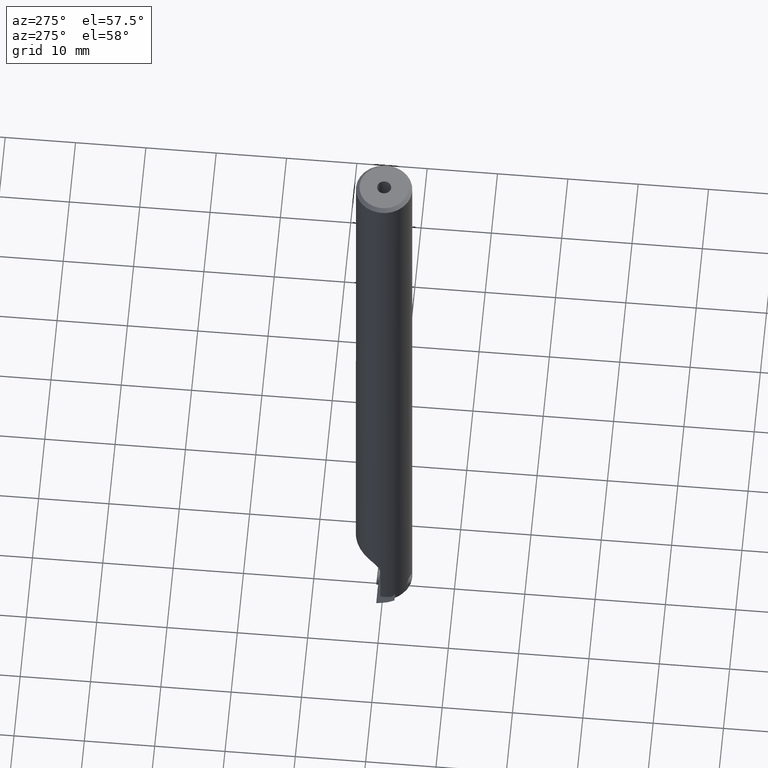
[diagram: clean part render]
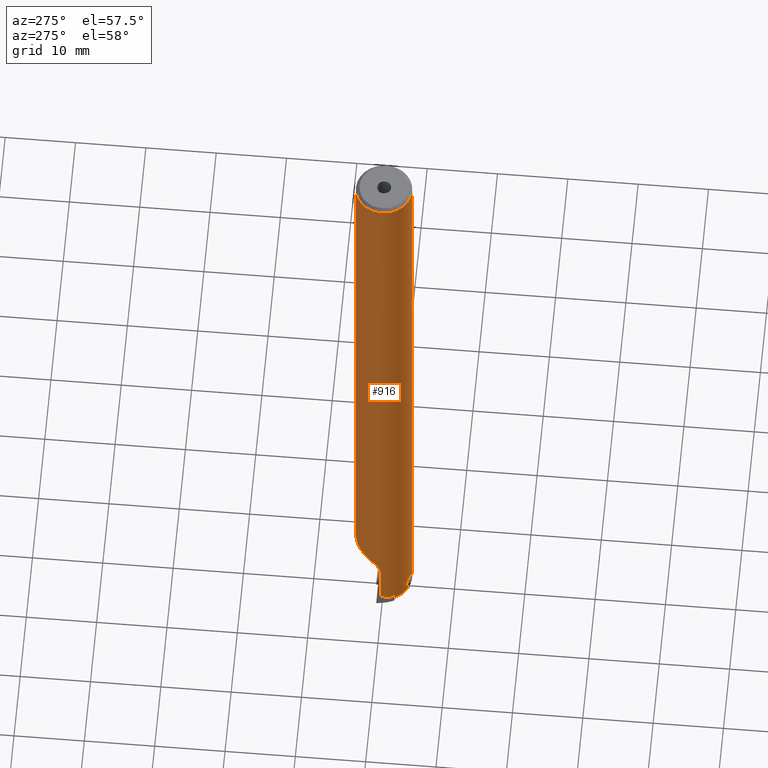
[diagram: same view with one face highlighted and labeled with its STEP entity id]
A machine part, auxiliary view. The second image highlights one B-rep face of the part: STEP entity #916.
In plain terms, the highlighted cylindrical surface (edge-blend (fillet) strip) has radius 4 mm, axis along (-0, -0, 1).
Its self-contained STEP definition (entity closure, byte-faithful):
#462=VERTEX_POINT('NONE',#1305);
#484=VERTEX_POINT('NONE',#1330);
#672=EDGE_CURVE('NONE',#942,#728,#1543,.T.);
#704=EDGE_CURVE('NONE',#1234,#942,#1578,.T.);
#728=VERTEX_POINT('NONE',#1606);
#748=EDGE_CURVE('NONE',#1040,#1214,#1629,.T.);
#830=EDGE_CURVE('NONE',#1234,#1216,#1724,.T.);
#852=EDGE_CURVE('NONE',#1214,#484,#1748,.T.);
#894=EDGE_CURVE('NONE',#1196,#462,#1794,.F.);
#902=EDGE_CURVE('NONE',#728,#1064,#1803,.T.);
#916=ADVANCED_FACE('NONE',(#1817,#1818),#1819,.T.);
#922=EDGE_CURVE('NONE',#1216,#1172,#1825,.T.);
#942=VERTEX_POINT('NONE',#1846);
#992=VERTEX_POINT('NONE',#1900);
#1008=EDGE_CURVE('NONE',#1064,#484,#1917,.T.);
#1040=VERTEX_POINT('NONE',#1951);
#1064=VERTEX_POINT('NONE',#1977);
#1082=EDGE_CURVE('NONE',#992,#1040,#1995,.T.);
#1096=EDGE_CURVE('NONE',#1172,#992,#2010,.T.);
#1172=VERTEX_POINT('NONE',#2092);
#1188=EDGE_CURVE('NONE',#462,#1196,#2111,.T.);
#1196=VERTEX_POINT('NONE',#2121);
#1214=VERTEX_POINT('NONE',#2142);
#1216=VERTEX_POINT('NONE',#2144);
#1234=VERTEX_POINT('NONE',#2163);
#1305=CARTESIAN_POINT('',(-0.340133994370878,-3.98551237181285,-13.923324010605));
#1330=CARTESIAN_POINT('',(4.89858719658941E-016,4.0,86.5));
#1543=B_SPLINE_CURVE_WITH_KNOTS('',3,(#3123,#3124,#3125,#3126,#3127,#3128,#3129,#3130,#3131,#3132,#3133,#3134,#3135,#3136,#3137,#3138,#3139,#3140,#3141,#3142,#3143,#3144,#3145,#3146),.UNSPECIFIED.,.F.,.F.,(4,2,2,2,2,2,2,2,2,2,2,4),(0.623065962701337,1.24613192540267,1.86919788810401,2.49226385080535,3.23942589249635,3.98658793418735,4.73374997587835,5.48091201756935,5.83565754083408,6.19040306409881,6.89989411062827,7.67961945005332),.UNSPECIFIED.);
#1578=LINE('',#3206,#3207);
#1606=CARTESIAN_POINT('',(-3.62077339804633,1.7,-5.8019237886467));
#1629=LINE('',#3268,#3269);
#1724=ELLIPSE('',#3394,4.50594786708596,4.0);
#1748=CIRCLE('',#3428,4.0);
#1794=B_SPLINE_CURVE_WITH_KNOTS('',3,(#3490,#3491,#3492,#3493,#3494,#3495,#3496,#3497,#3498,#3499,#3500,#3501,#3502,#3503,#3504,#3505,#3506,#3507,#3508,#3509,#3510),.UNSPECIFIED.,.F.,.F.,(4,2,2,2,2,2,2,2,3,4),(2.46613264537326,2.72000684166074,3.01468329092231,3.3177284971455,3.62077370336868,3.92793509737604,4.2350964913834,4.53351536203885,4.83193423269431,4.87285303651468),.UNSPECIFIED.);
#1803=ELLIPSE('',#3532,4.618802153517,4.0);
#1817=FACE_OUTER_BOUND('',#3555,.T.);
#1818=FACE_BOUND('',#3556,.T.);
#1819=CYLINDRICAL_SURFACE('',#3557,4.0);
#1825=ELLIPSE('',#3565,8.84778686264525,4.0);
#1846=CARTESIAN_POINT('',(-3.99499687108764,0.2,-8.40000000000002));
#1900=CARTESIAN_POINT('',(-3.56054767509206,-1.82277268286436,-15.3031423692364));
#1917=LINE('',#3696,#3697);
#1951=CARTESIAN_POINT('',(0.0,-4.0,-15.1305370023047));
#1977=CARTESIAN_POINT('',(4.89858719658941E-016,4.0,-4.47401816951056));
#1995=B_SPLINE_CURVE_WITH_KNOTS('',3,(#3811,#3812,#3813,#3814,#3815,#3816,#3817,#3818,#3819,#3820,#3821,#3822,#3823,#3824,#3825,#3826),.UNSPECIFIED.,.F.,.F.,(4,3,3,3,3,4),(0.0,0.188412118526017,0.205693687149149,0.324787536858853,0.402670096026246,0.411387374298297),.UNSPECIFIED.);
#2010=ELLIPSE('',#3848,45.9578366004953,4.0);
#2092=CARTESIAN_POINT('',(-3.52001675680302,-1.89986368769604,-14.4186547680544));
#2111=B_SPLINE_CURVE_WITH_KNOTS('',3,(#4054,#4055,#4056,#4057,#4058,#4059,#4060,#4061,#4062,#4063,#4064,#4065,#4066,#4067,#4068,#4069,#4070,#4071,#4072,#4073),.UNSPECIFIED.,.F.,.F.,(4,2,2,2,2,2,2,2,2,4),(2.36579783438626,2.40660336280622,2.70091617536794,2.99522898792967,3.29440617751613,3.59358336710259,3.91188587946234,4.23018839182208,4.53106107351374,4.79101495138584),.UNSPECIFIED.);
#2121=CARTESIAN_POINT('',(-1.90012813483741,-3.51987401354073,-13.964285854812));
#2142=CARTESIAN_POINT('',(0.0,-4.0,86.5));
#2144=CARTESIAN_POINT('',(-3.77484015987331,-1.32309552467222,-14.8652238306208));
#2163=CARTESIAN_POINT('',(-3.99499687108764,0.199999999999998,-14.6230867115586));
#3123=CARTESIAN_POINT('',(-3.91809947218333,0.805292820082678,-10.2070355620332));
#3124=CARTESIAN_POINT('',(-3.94455207976015,0.676589388383246,-10.0364760911105));
#3125=CARTESIAN_POINT('',(-3.96108633311694,0.56405593062235,-9.84887138798155));
#3126=CARTESIAN_POINT('',(-3.98272604400572,0.382434913017021,-9.45297550611414));
#3127=CARTESIAN_POINT('',(-3.98798540686881,0.313149063253035,-9.24429186444008));
#3128=CARTESIAN_POINT('',(-3.99410071693948,0.221922064829203,-8.82165020664595));
#3129=CARTESIAN_POINT('',(-3.99499687108764,0.2,-8.6076886542338));
#3130=CARTESIAN_POINT('',(-3.99499687108764,0.2,-8.15094598610302));
#3131=CARTESIAN_POINT('',(-3.99380982541122,0.23150048120355,-7.89672137838658));
#3132=CARTESIAN_POINT('',(-3.98434061998706,0.359359460399477,-7.40198192144803));
#3133=CARTESIAN_POINT('',(-3.97594482845984,0.455697115901102,-7.16146386739217));
#3134=CARTESIAN_POINT('',(-3.93949086216808,0.704422631203252,-6.71558301369701));
#3135=CARTESIAN_POINT('',(-3.9111236331673,0.857231536386374,-6.50959650796665));
#3136=CARTESIAN_POINT('',(-3.81943726759416,1.20151277984577,-6.14872519837595));
#3137=CARTESIAN_POINT('',(-3.75578762647215,1.39295948439845,-5.99389998892123));
#3138=CARTESIAN_POINT('',(-3.62965022865186,1.68406390079414,-5.808808881523));
#3139=CARTESIAN_POINT('',(-3.58225146160231,1.78346766556096,-5.75307247076142));
#3140=CARTESIAN_POINT('',(-3.47362212317848,1.98676415166098,-5.65393955364956));
#3141=CARTESIAN_POINT('',(-3.41236792927738,2.09063714435058,-5.61052847721883));
#3142=CARTESIAN_POINT('',(-3.21079127866756,2.3981022074477,-5.50098140092265));
#3143=CARTESIAN_POINT('',(-3.05122555360107,2.59717920135468,-5.45618152130341));
#3144=CARTESIAN_POINT('',(-2.70972335986805,2.95367746207782,-5.40418513233946));
#3145=CARTESIAN_POINT('',(-2.50701951851536,3.12852301772123,-5.39688846799595));
#3146=CARTESIAN_POINT('',(-2.28558469737583,3.28269745653197,-5.40114002816353));
#3206=CARTESIAN_POINT('',(-3.99499687108764,0.199999999999998,0.0));
#3207=VECTOR('',#5927,1.0);
#3268=CARTESIAN_POINT('',(0.0,-4.0,0.0));
#3269=VECTOR('',#5999,1000.0);
#3394=AXIS2_PLACEMENT_3D('',#6126,#6127,#6128);
#3428=AXIS2_PLACEMENT_3D('',#6171,#6172,#6173);
#3490=CARTESIAN_POINT('',(-0.340133994370878,-3.98551237181285,-13.923324010605));
#3491=CARTESIAN_POINT('',(-0.344638485604207,-3.98512794681228,-13.8373731976732));
#3492=CARTESIAN_POINT('',(-0.364087602190276,-3.98354297748423,-13.7481077759559));
#3493=CARTESIAN_POINT('',(-0.437767835911571,-3.97617172808404,-13.5685049008053));
#3494=CARTESIAN_POINT('',(-0.497377942227755,-3.96955637715968,-13.480325119294));
#3495=CARTESIAN_POINT('',(-0.635954800905414,-3.9497592962211,-13.3385459694934));
#3496=CARTESIAN_POINT('',(-0.7248972088167,-3.93500851014883,-13.276280850098));
#3497=CARTESIAN_POINT('',(-0.918348145800865,-3.89440683868328,-13.1925291153131));
#3498=CARTESIAN_POINT('',(-1.02278440398214,-3.86834716828139,-13.1709769421968));
#3499=CARTESIAN_POINT('',(-1.21799428615085,-3.81142579341745,-13.1659258053566));
#3500=CARTESIAN_POINT('',(-1.32227335265127,-3.77652482827267,-13.1824783826222));
#3501=CARTESIAN_POINT('',(-1.51432177117063,-3.70369763523133,-13.2556303398172));
#3502=CARTESIAN_POINT('',(-1.60216019768619,-3.6659284573954,-13.3122046261024));
#3503=CARTESIAN_POINT('',(-1.7402956999854,-3.60235836903246,-13.4449635131369));
#3504=CARTESIAN_POINT('',(-1.80054412775999,-3.57212759646209,-13.5294821845525));
#3505=CARTESIAN_POINT('',(-1.88103307278919,-3.53040641024272,-13.7187591933188));
#3506=CARTESIAN_POINT('',(-1.9012079442238,-3.51929088778127,-13.8236278737634));
#3507=CARTESIAN_POINT('',(-1.9012079442238,-3.51929088778127,-13.9231008306486));
#3508=CARTESIAN_POINT('',(-1.9012079442238,-3.51929088778127,-13.936740431922));
#3509=CARTESIAN_POINT('',(-1.90085160330944,-3.51948346467646,-13.9504812540079));
#3510=CARTESIAN_POINT('',(-1.90012813483741,-3.51987401354073,-13.964285854812));
#3532=AXIS2_PLACEMENT_3D('',#6232,#6233,#6234);
#3555=EDGE_LOOP('',(#6243,#6244,#6245,#6246,#6247,#6248,#6249,#6250,#6251,#6252));
#3556=EDGE_LOOP('',(#6253,#6254));
#3557=AXIS2_PLACEMENT_3D('',#6255,#6256,#6257);
#3565=AXIS2_PLACEMENT_3D('',#6261,#6262,#6263);
#3696=CARTESIAN_POINT('',(4.89858719658941E-016,4.0,0.0));
#3697=VECTOR('',#6362,1000.0);
#3811=CARTESIAN_POINT('',(-3.56054767509206,-1.82277268286436,-15.3031423692364));
#3812=CARTESIAN_POINT('',(-3.25534217405223,-2.4189516509653,-15.2883426424038));
#3813=CARTESIAN_POINT('',(-2.79583253460313,-2.93797584600113,-15.266101723444));
#3814=CARTESIAN_POINT('',(-2.24119877189659,-3.31315983086376,-15.2391864609535));
#3815=CARTESIAN_POINT('',(-2.1903265588675,-3.34757252061762,-15.236717734635));
#3816=CARTESIAN_POINT('',(-2.13867684964723,-3.38080487859008,-15.2342107364304));
#3817=CARTESIAN_POINT('',(-2.08621750770784,-3.41287217904997,-15.2316678707637));
#3818=CARTESIAN_POINT('',(-1.72470026809585,-3.63386011971955,-15.2141440181461));
#3819=CARTESIAN_POINT('',(-1.32798321124298,-3.79680190480836,-15.1949178177554));
#3820=CARTESIAN_POINT('',(-0.915857878696672,-3.89373912146528,-15.1749291669478));
#3821=CARTESIAN_POINT('',(-0.646344585821699,-3.95713213907457,-15.1618573980613));
#3822=CARTESIAN_POINT('',(-0.370407757171277,-3.99245882629931,-15.1484601278995));
#3823=CARTESIAN_POINT('',(-0.0931214566866949,-3.99891590237961,-15.1350430197961));
#3824=CARTESIAN_POINT('',(-0.0620852161189409,-3.99963863324025,-15.133541262969));
#3825=CARTESIAN_POINT('',(-0.031000672770188,-4.0,-15.1320398254685));
#3826=CARTESIAN_POINT('',(-1.7728873924483E-015,-4.0,-15.1305370023047));
#3848=AXIS2_PLACEMENT_3D('',#6443,#6444,#6445);
#4054=CARTESIAN_POINT('',(-0.340133994370878,-3.98551237181285,-13.923324010605));
#4055=CARTESIAN_POINT('',(-0.339410092312841,-3.98557415149776,-13.937136884723));
#4056=CARTESIAN_POINT('',(-0.339056434599473,-3.98560418684002,-13.9508642667507));
#4057=CARTESIAN_POINT('',(-0.339056434599473,-3.98560418684002,-14.0625703804112));
#4058=CARTESIAN_POINT('',(-0.358566644994295,-3.98409691143101,-14.1672324582828));
#4059=CARTESIAN_POINT('',(-0.438125386789067,-3.97613435446152,-14.3594194652242));
#4060=CARTESIAN_POINT('',(-0.49817924325071,-3.96947399350132,-14.4469336383015));
#4061=CARTESIAN_POINT('',(-0.63799867146238,-3.94943382806055,-14.5854458343241));
#4062=CARTESIAN_POINT('',(-0.727121175513515,-3.93459319503643,-14.6446992243883));
#4063=CARTESIAN_POINT('',(-0.920163402689242,-3.89397330965747,-14.7203976645905));
#4064=CARTESIAN_POINT('',(-1.02402181287217,-3.86798635142875,-14.7368874550474));
#4065=CARTESIAN_POINT('',(-1.22155841738112,-3.81038652610389,-14.7317761132995));
#4066=CARTESIAN_POINT('',(-1.32808213850278,-3.77451612959795,-14.70758476653));
#4067=CARTESIAN_POINT('',(-1.52205788560449,-3.7005558996859,-14.6185084695964));
#4068=CARTESIAN_POINT('',(-1.60961345233869,-3.66264314834451,-14.5537020973308));
#4069=CARTESIAN_POINT('',(-1.74419863439446,-3.60041143696239,-14.4101347276422));
#4070=CARTESIAN_POINT('',(-1.80232611858183,-3.57121515509514,-14.322390610294));
#4071=CARTESIAN_POINT('',(-1.87552931143191,-3.53324933053389,-14.1422177898946));
#4072=CARTESIAN_POINT('',(-1.89553199767643,-3.52235513914282,-14.0519853762161));
#4073=CARTESIAN_POINT('',(-1.90012813483741,-3.51987401354073,-13.964285854812));
#5927=DIRECTION('',(0.0,-0.0,1.0));
#5999=DIRECTION('',(0.0,-0.0,1.0));
#6126=CARTESIAN_POINT('',(0.0,0.0,-16.6839669852293));
#6127=DIRECTION('',(0.454162972261686,-0.0754790873051733,0.887715552418684));
#6128=DIRECTION('',(0.875704278916418,-0.14553665481069,-0.460392330511696));
#6171=CARTESIAN_POINT('',(0.0,0.0,86.5));
#6172=DIRECTION('',(0.0,0.0,-1.0));
#6173=DIRECTION('',(0.0,-1.0,0.0));
#6232=CARTESIAN_POINT('',(0.0,0.0,-6.78341924626905));
#6233=DIRECTION('',(3.02866623105412E-015,0.499999999999998,-0.86602540378444));
#6234=DIRECTION('',(-1.45600303795675E-031,-0.86602540378444,-0.499999999999998));
#6243=ORIENTED_EDGE('',*,*,#1008,.F.);
#6244=ORIENTED_EDGE('',*,*,#902,.F.);
#6245=ORIENTED_EDGE('',*,*,#672,.F.);
#6246=ORIENTED_EDGE('',*,*,#704,.F.);
#6247=ORIENTED_EDGE('',*,*,#830,.T.);
#6248=ORIENTED_EDGE('',*,*,#922,.T.);
#6249=ORIENTED_EDGE('',*,*,#1096,.T.);
#6250=ORIENTED_EDGE('',*,*,#1082,.T.);
#6251=ORIENTED_EDGE('',*,*,#748,.T.);
#6252=ORIENTED_EDGE('',*,*,#852,.T.);
#6253=ORIENTED_EDGE('',*,*,#894,.T.);
#6254=ORIENTED_EDGE('',*,*,#1188,.T.);
#6255=CARTESIAN_POINT('',(0.0,0.0,0.0));
#6256=DIRECTION('',(-0.0,-0.0,1.0));
#6257=DIRECTION('',(0.0,-1.0,0.0));
#6261=CARTESIAN_POINT('',(0.0,0.0,-7.29884201113289));
#6262=DIRECTION('',(-0.890906947131282,-0.0435778713738295,0.452090456302437));
#6263=DIRECTION('',(-0.451550592491225,-0.0220871704971222,-0.891972095595067));
#6362=DIRECTION('',(0.0,-0.0,1.0));
#6443=CARTESIAN_POINT('',(0.0,0.0,-35.9795210614952));
#6444=DIRECTION('',(0.00456137913876211,-0.996194698091746,-0.0870362988312832));
#6445=DIRECTION('',(0.000398517877010134,-0.0870353864686665,0.996205140864948));